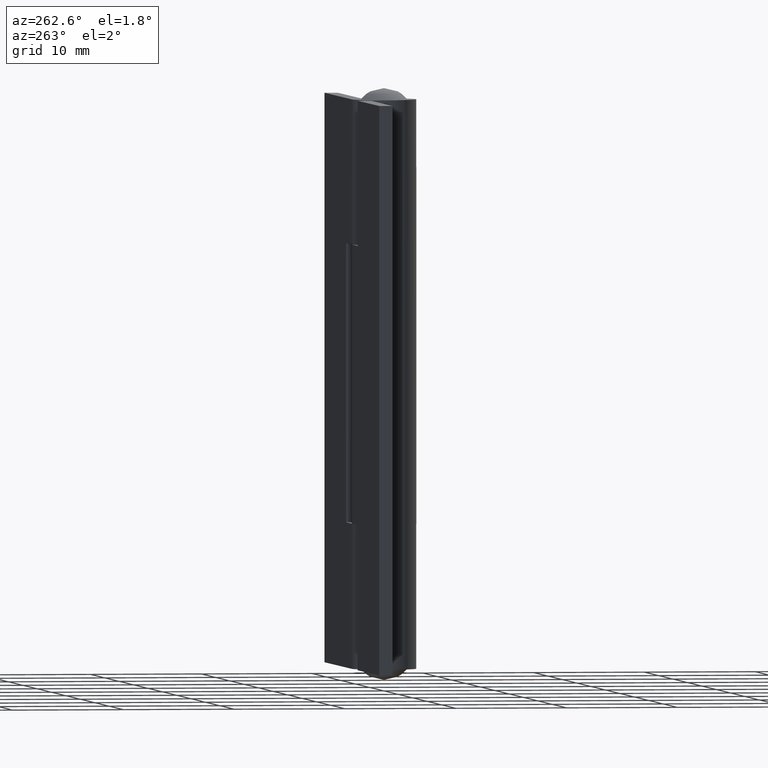
[diagram: clean part render]
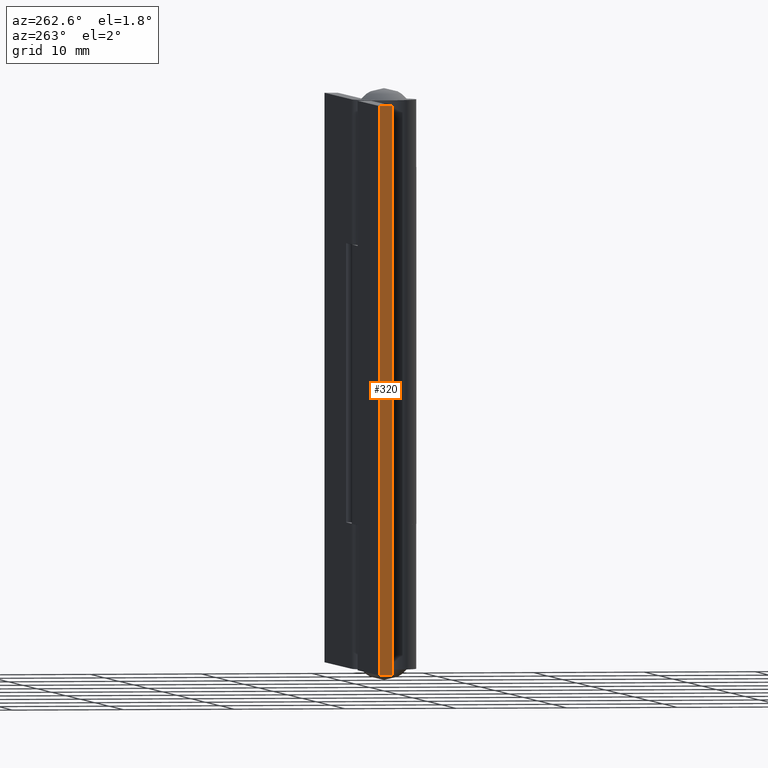
[diagram: same view with one face highlighted and labeled with its STEP entity id]
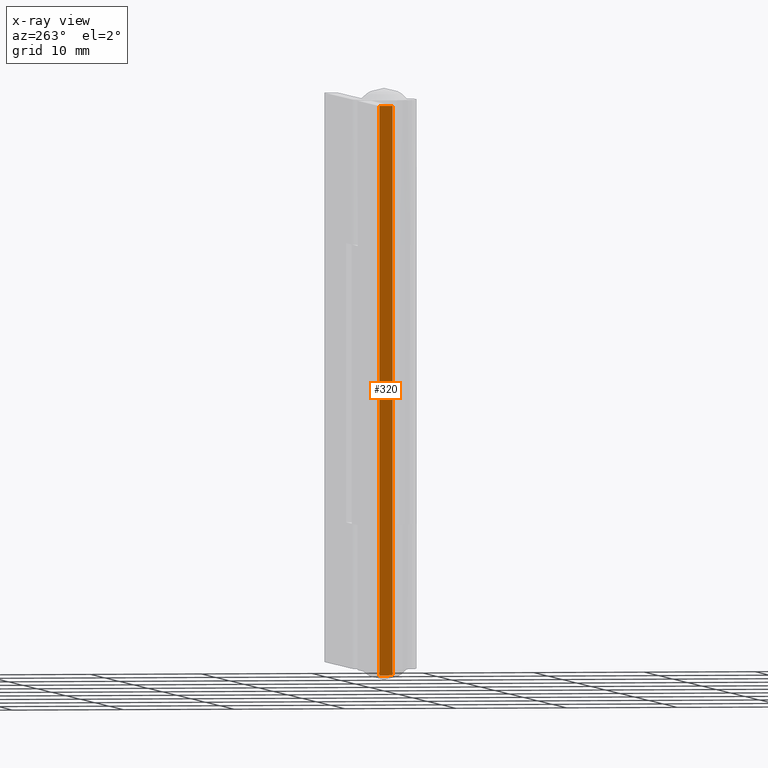
[diagram: x-ray of the same camera — body ghosted, the highlighted face saturated]
A machine part, auxiliary view. The second image highlights one B-rep face of the part: STEP entity #320.
The next image is the same camera in x-ray: the body ghosted, the highlighted face saturated — about 0% of this face is hidden behind the body in this view.
In plain terms, the highlighted face is a freeform B-spline surface patch.
Its self-contained STEP definition (entity closure, byte-faithful):
#271=CARTESIAN_POINT('',(-19.0,1.700002000000030,0.0));
#272=VERTEX_POINT('',#271);
#278=CARTESIAN_POINT('',(-19.0,2.900002000000000,0.0));
#279=VERTEX_POINT('',#278);
#280=CARTESIAN_POINT('',(-19.0,1.700002000000030,0.0));
#281=CARTESIAN_POINT('',(-19.0,2.900002000000000,0.0));
#282=QUASI_UNIFORM_CURVE('',1,(#280,#281),.UNSPECIFIED.,.F.,.U.);
#283=EDGE_CURVE('',#272,#279,#282,.T.);
#293=CARTESIAN_POINT('',(-19.0,1.640062002325864,-2.547449901152102));
#294=CARTESIAN_POINT('',(-19.0,1.640062002325864,53.547451269078707));
#295=CARTESIAN_POINT('',(-19.0,2.959942029860674,-2.547449901152102));
#296=CARTESIAN_POINT('',(-19.0,2.959942029860674,53.547451269078707));
#297=B_SPLINE_SURFACE_WITH_KNOTS('',1,1,((#293,#295),(#294,#296)),.UNSPECIFIED.,.F.,.F.,.U.,(2,2),(2,2),(0.0,56.094901170230813),(0.041708334948495,0.958291687403247),.UNSPECIFIED.);
#298=ORIENTED_EDGE('',*,*,#283,.F.);
#299=CARTESIAN_POINT('',(-19.0,1.700002000000030,51.0));
#300=VERTEX_POINT('',#299);
#301=CARTESIAN_POINT('',(-19.0,1.700002000000030,51.0));
#302=CARTESIAN_POINT('',(-19.0,1.700002000000030,0.0));
#303=QUASI_UNIFORM_CURVE('',1,(#301,#302),.UNSPECIFIED.,.F.,.U.);
#304=EDGE_CURVE('',#300,#272,#303,.T.);
#305=ORIENTED_EDGE('',*,*,#304,.F.);
#306=CARTESIAN_POINT('',(-19.0,2.900002000000000,51.0));
#307=VERTEX_POINT('',#306);
#308=CARTESIAN_POINT('',(-19.0,1.700002000000030,51.0));
#309=CARTESIAN_POINT('',(-19.0,2.900002000000000,51.0));
#310=QUASI_UNIFORM_CURVE('',1,(#308,#309),.UNSPECIFIED.,.F.,.U.);
#311=EDGE_CURVE('',#300,#307,#310,.T.);
#312=ORIENTED_EDGE('',*,*,#311,.T.);
#313=CARTESIAN_POINT('',(-19.0,2.900002000000000,51.0));
#314=CARTESIAN_POINT('',(-19.0,2.900002000000000,0.0));
#315=QUASI_UNIFORM_CURVE('',1,(#313,#314),.UNSPECIFIED.,.F.,.U.);
#316=EDGE_CURVE('',#307,#279,#315,.T.);
#317=ORIENTED_EDGE('',*,*,#316,.T.);
#318=EDGE_LOOP('',(#298,#305,#312,#317));
#319=FACE_OUTER_BOUND('',#318,.T.);
#320=ADVANCED_FACE('',(#319),#297,.T.);